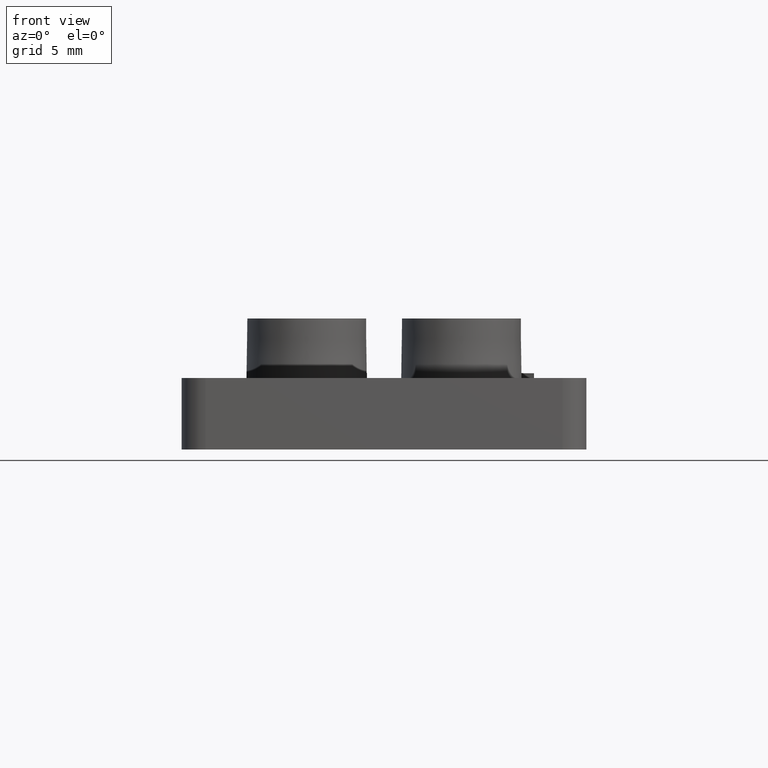
[diagram: clean part render]
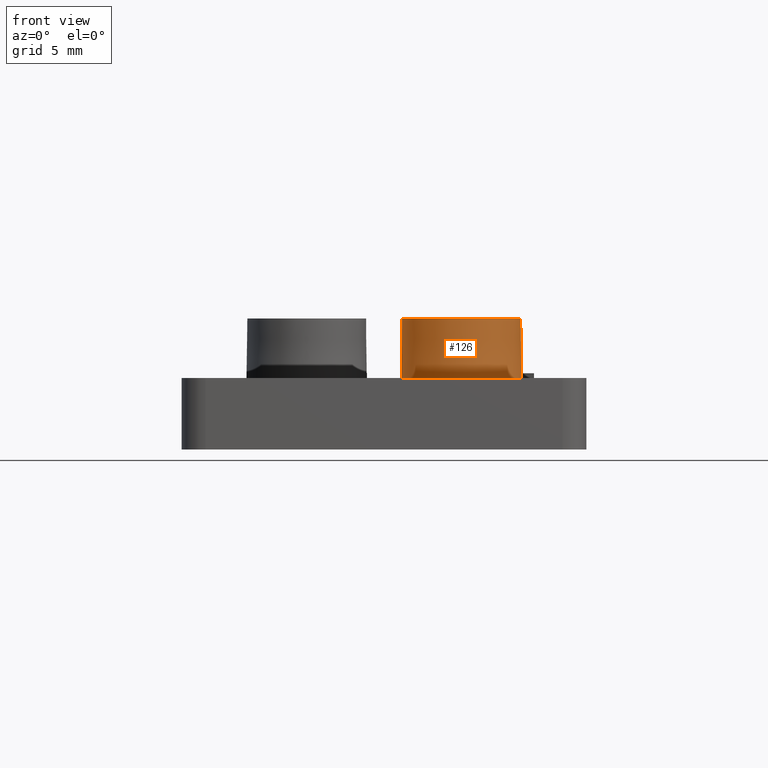
[diagram: same view with one face highlighted and labeled with its STEP entity id]
A machine part, front view. The second image highlights one B-rep face of the part: STEP entity #126.
In plain terms, the highlighted conical surface has half-angle 1 deg.
Its self-contained STEP definition (entity closure, byte-faithful):
#126 = ADVANCED_FACE( '', ( #249, #250 ), #251, .T. );
#249 = FACE_OUTER_BOUND( '', #382, .T. );
#250 = FACE_BOUND( '', #383, .T. );
#251 = CONICAL_SURFACE( '', #384, 2.50000000000000, 0.0174532925199433 );
#382 = EDGE_LOOP( '', ( #814 ) );
#383 = EDGE_LOOP( '', ( #815 ) );
#384 = AXIS2_PLACEMENT_3D( '', #816, #817, #818 );
#814 = ORIENTED_EDGE( '', *, *, #901, .F. );
#815 = ORIENTED_EDGE( '', *, *, #1023, .T. );
#816 = CARTESIAN_POINT( '', ( 3.25000000000000, -5.62916512459885, 5.50000000000001 ) );
#817 = DIRECTION( '', ( 0.000000000000000, -6.12303176911189E-017, -1.00000000000000 ) );
#818 = DIRECTION( '', ( 0.000000000000000, 1.00000000000000, -6.12303176911189E-017 ) );
#901 = EDGE_CURVE( '', #1068, #1068, #1069, .T. );
#1023 = EDGE_CURVE( '', #1270, #1270, #1271, .T. );
#1068 = VERTEX_POINT( '', #1331 );
#1069 = CIRCLE( '', #1332, 2.54363766232054 );
#1270 = VERTEX_POINT( '', #1644 );
#1271 = CIRCLE( '', #1645, 2.50000000000000 );
#1331 = CARTESIAN_POINT( '', ( 3.25000000000000, -3.08552746227831, 3.00000000000000 ) );
#1332 = AXIS2_PLACEMENT_3D( '', #1685, #1686, #1687 );
#1644 = CARTESIAN_POINT( '', ( 5.75000000000000, -5.62916512459885, 5.50000000000001 ) );
#1645 = AXIS2_PLACEMENT_3D( '', #1829, #1830, #1831 );
#1685 = CARTESIAN_POINT( '', ( 3.25000000000000, -5.62916512459885, 3.00000000000000 ) );
#1686 = DIRECTION( '', ( 0.000000000000000, -6.12303176911189E-017, -1.00000000000000 ) );
#1687 = DIRECTION( '', ( 0.000000000000000, 1.00000000000000, -6.12303176911189E-017 ) );
#1829 = CARTESIAN_POINT( '', ( 3.25000000000000, -5.62916512459885, 5.50000000000001 ) );
#1830 = DIRECTION( '', ( 0.000000000000000, -6.12303176911189E-017, -1.00000000000000 ) );
#1831 = DIRECTION( '', ( 1.00000000000000, 0.000000000000000, 0.000000000000000 ) );